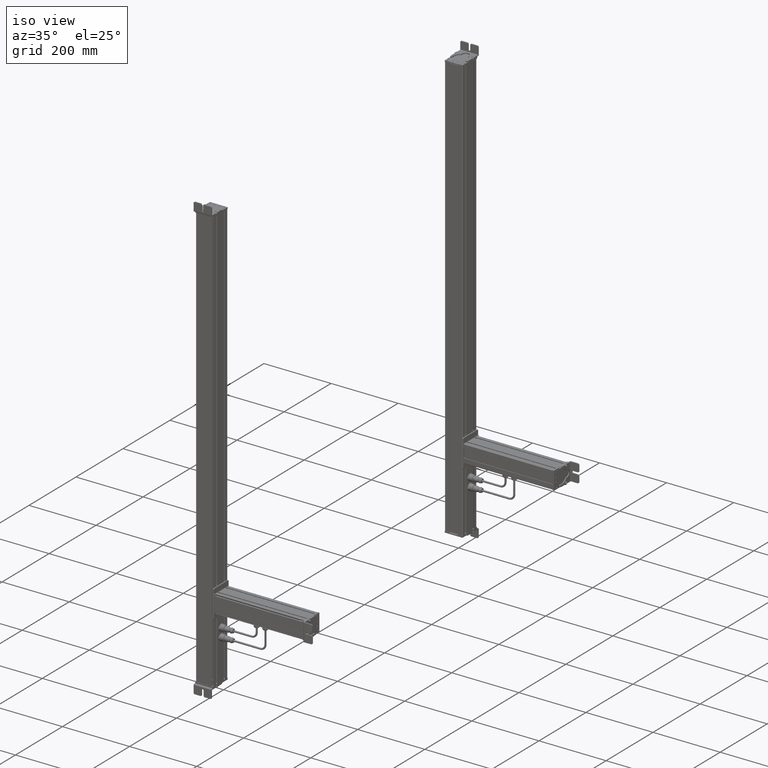
[diagram: clean part render]
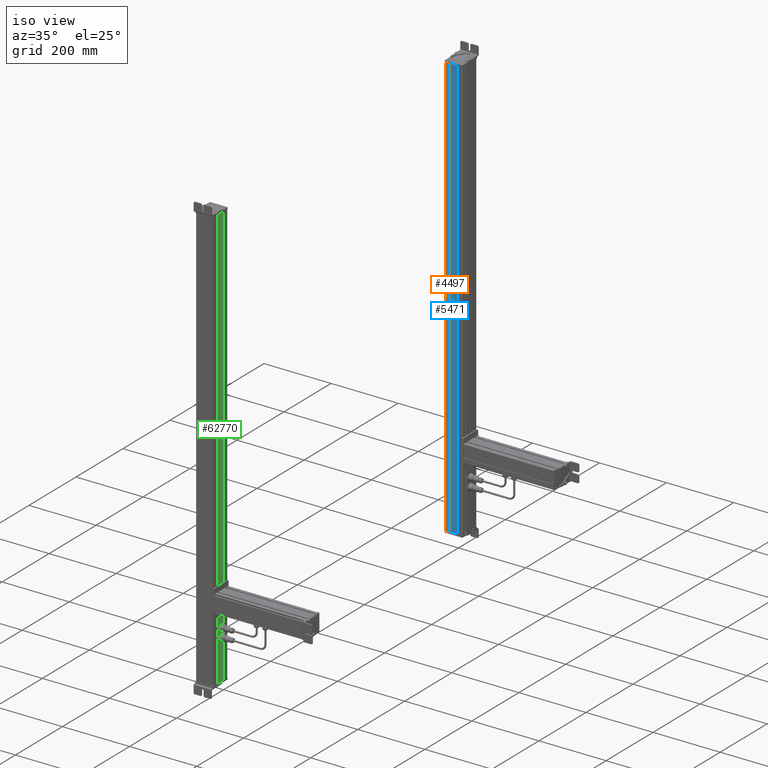
[diagram: same view with three faces highlighted in distinct colors, each labeled with its STEP entity id]
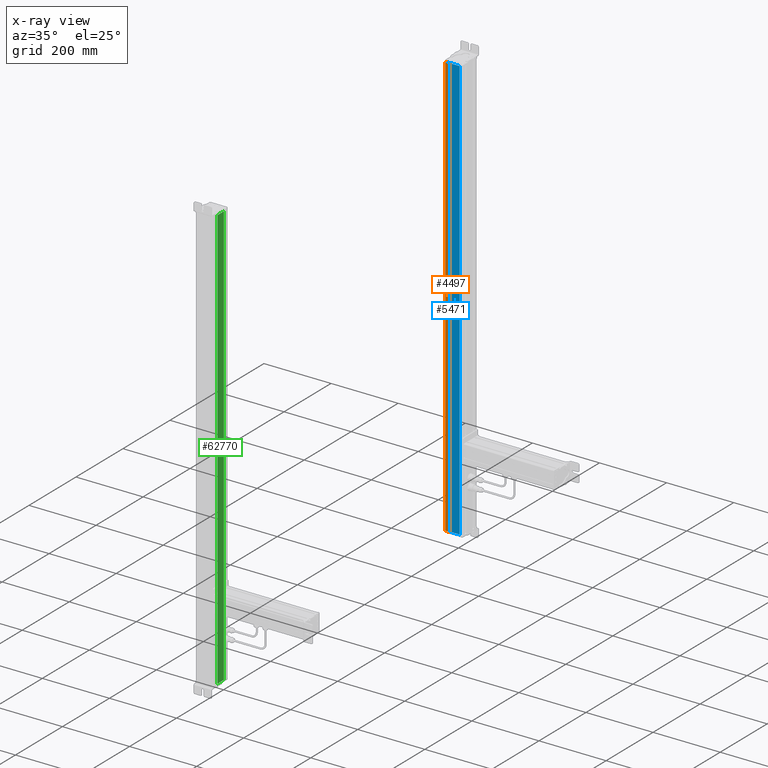
[diagram: x-ray of the same camera — body ghosted, the three highlighted faces saturated]
A machine part, iso view with three faces highlighted in distinct colors.
The next image is the same camera in x-ray (body ghosted, the three faces saturated) — at least one of them is partly hidden behind the body in this view.
Their STEP definitions:

[orange] entity #4497 — the highlighted planar face has unit normal (0, -1, 0).
#598=CARTESIAN_POINT('Axis2P3D Location',(664.195883662,182.060203323,0.)) ;
#4450=CARTESIAN_POINT('Vertex',(664.195883661,182.060203323,0.)) ;
#4453=CARTESIAN_POINT('Line Origine',(664.195883661,182.060203323,631.)) ;
#4457=CARTESIAN_POINT('Vertex',(664.195883661,182.060203323,1262.)) ;
#4472=CARTESIAN_POINT('Line Origine',(657.845883661,182.060203323,0.)) ;
#4476=CARTESIAN_POINT('Vertex',(651.495883661,182.060203323,0.)) ;
#4479=CARTESIAN_POINT('Line Origine',(651.495883661,182.060203323,631.)) ;
#4483=CARTESIAN_POINT('Vertex',(651.495883661,182.060203323,1262.)) ;
#4486=CARTESIAN_POINT('Line Origine',(657.845883661,182.060203323,1262.)) ;
#599=DIRECTION('Axis2P3D Direction',(0.,1.,-0.)) ;
#600=DIRECTION('Axis2P3D XDirection',(-1.,0.,0.)) ;
#4454=DIRECTION('Vector Direction',(0.,0.,1.)) ;
#4473=DIRECTION('Vector Direction',(-1.,0.,0.)) ;
#4480=DIRECTION('Vector Direction',(0.,0.,1.)) ;
#4487=DIRECTION('Vector Direction',(-1.,0.,0.)) ;
#601=AXIS2_PLACEMENT_3D('Plane Axis2P3D',#598,#599,#600) ;
#4492=ORIENTED_EDGE('',*,*,#4459,.F.) ;
#4493=ORIENTED_EDGE('',*,*,#4478,.T.) ;
#4494=ORIENTED_EDGE('',*,*,#4485,.T.) ;
#4495=ORIENTED_EDGE('',*,*,#4490,.F.) ;
#4455=VECTOR('Line Direction',#4454,1.) ;
#4474=VECTOR('Line Direction',#4473,1.) ;
#4481=VECTOR('Line Direction',#4480,1.) ;
#4488=VECTOR('Line Direction',#4487,1.) ;
#4497=ADVANCED_FACE('Body.2',(#4496),#602,.T.) ;
#4459=EDGE_CURVE('',#4451,#4458,#4456,.T.) ;
#4478=EDGE_CURVE('',#4451,#4477,#4475,.T.) ;
#4485=EDGE_CURVE('',#4477,#4484,#4482,.T.) ;
#4490=EDGE_CURVE('',#4458,#4484,#4489,.T.) ;
#4491=EDGE_LOOP('',(#4492,#4493,#4494,#4495)) ;
#4496=FACE_OUTER_BOUND('',#4491,.T.) ;
#4456=LINE('Line',#4453,#4455) ;
#4475=LINE('Line',#4472,#4474) ;
#4482=LINE('Line',#4479,#4481) ;
#4489=LINE('Line',#4486,#4488) ;
#602=PLANE('Plane',#601) ;
#4451=VERTEX_POINT('',#4450) ;
#4458=VERTEX_POINT('',#4457) ;
#4477=VERTEX_POINT('',#4476) ;
#4484=VERTEX_POINT('',#4483) ;

[blue] entity #5471 — the highlighted planar face has unit normal (0, -1, 0).
#5388=CARTESIAN_POINT('Vertex',(622.718933105,180.560203323,0.)) ;
#5391=CARTESIAN_POINT('Line Origine',(639.443450928,180.560203323,0.)) ;
#5395=CARTESIAN_POINT('Vertex',(656.16796875,180.560203323,0.)) ;
#5428=CARTESIAN_POINT('Vertex',(622.718933105,180.560203323,1262.)) ;
#5431=CARTESIAN_POINT('Line Origine',(622.718933105,180.560203323,631.)) ;
#5448=CARTESIAN_POINT('Axis2P3D Location',(656.16796875,180.560203323,0.)) ;
#5453=CARTESIAN_POINT('Line Origine',(656.16796875,180.560203323,631.)) ;
#5457=CARTESIAN_POINT('Vertex',(656.16796875,180.560203323,1262.)) ;
#5460=CARTESIAN_POINT('Line Origine',(639.443450928,180.560203323,1262.)) ;
#5392=DIRECTION('Vector Direction',(-1.,0.,0.)) ;
#5432=DIRECTION('Vector Direction',(0.,0.,1.)) ;
#5449=DIRECTION('Axis2P3D Direction',(-0.,1.,0.)) ;
#5450=DIRECTION('Axis2P3D XDirection',(-1.,-0.,0.)) ;
#5454=DIRECTION('Vector Direction',(0.,0.,1.)) ;
#5461=DIRECTION('Vector Direction',(-1.,0.,0.)) ;
#5451=AXIS2_PLACEMENT_3D('Plane Axis2P3D',#5448,#5449,#5450) ;
#5466=ORIENTED_EDGE('',*,*,#5459,.F.) ;
#5467=ORIENTED_EDGE('',*,*,#5397,.F.) ;
#5468=ORIENTED_EDGE('',*,*,#5435,.T.) ;
#5469=ORIENTED_EDGE('',*,*,#5464,.F.) ;
#5393=VECTOR('Line Direction',#5392,1.) ;
#5433=VECTOR('Line Direction',#5432,1.) ;
#5455=VECTOR('Line Direction',#5454,1.) ;
#5462=VECTOR('Line Direction',#5461,1.) ;
#5471=ADVANCED_FACE('Body.3',(#5470),#5452,.T.) ;
#5397=EDGE_CURVE('',#5389,#5396,#5394,.F.) ;
#5435=EDGE_CURVE('',#5389,#5429,#5434,.T.) ;
#5459=EDGE_CURVE('',#5396,#5458,#5456,.T.) ;
#5464=EDGE_CURVE('',#5458,#5429,#5463,.T.) ;
#5465=EDGE_LOOP('',(#5466,#5467,#5468,#5469)) ;
#5470=FACE_OUTER_BOUND('',#5465,.T.) ;
#5394=LINE('Line',#5391,#5393) ;
#5434=LINE('Line',#5431,#5433) ;
#5456=LINE('Line',#5453,#5455) ;
#5463=LINE('Line',#5460,#5462) ;
#5452=PLANE('Plane',#5451) ;
#5389=VERTEX_POINT('',#5388) ;
#5396=VERTEX_POINT('',#5395) ;
#5429=VERTEX_POINT('',#5428) ;
#5458=VERTEX_POINT('',#5457) ;

[green] entity #62770 — the highlighted planar face has unit normal (1, 0, 0).
#62031=CARTESIAN_POINT('Axis2P3D Location',(666.195883662,171.710394004,0.)) ;
#62723=CARTESIAN_POINT('Vertex',(666.195883661,138.767790275,0.)) ;
#62726=CARTESIAN_POINT('Line Origine',(666.195883661,138.767790275,631.)) ;
#62730=CARTESIAN_POINT('Vertex',(666.195883661,138.767790275,1262.)) ;
#62745=CARTESIAN_POINT('Line Origine',(666.195883662,152.38909214,0.)) ;
#62749=CARTESIAN_POINT('Vertex',(666.195883662,166.010394005,0.)) ;
#62752=CARTESIAN_POINT('Line Origine',(666.195883662,166.010394005,631.)) ;
#62756=CARTESIAN_POINT('Vertex',(666.195883662,166.010394005,1262.)) ;
#62759=CARTESIAN_POINT('Line Origine',(666.195883662,152.38909214,1262.)) ;
#62032=DIRECTION('Axis2P3D Direction',(1.,0.,0.)) ;
#62033=DIRECTION('Axis2P3D XDirection',(0.,1.,0.)) ;
#62727=DIRECTION('Vector Direction',(0.,0.,1.)) ;
#62746=DIRECTION('Vector Direction',(0.,1.,0.)) ;
#62753=DIRECTION('Vector Direction',(0.,0.,1.)) ;
#62760=DIRECTION('Vector Direction',(0.,1.,0.)) ;
#62034=AXIS2_PLACEMENT_3D('Plane Axis2P3D',#62031,#62032,#62033) ;
#62765=ORIENTED_EDGE('',*,*,#62732,.F.) ;
#62766=ORIENTED_EDGE('',*,*,#62751,.T.) ;
#62767=ORIENTED_EDGE('',*,*,#62758,.T.) ;
#62768=ORIENTED_EDGE('',*,*,#62763,.F.) ;
#62728=VECTOR('Line Direction',#62727,1.) ;
#62747=VECTOR('Line Direction',#62746,1.) ;
#62754=VECTOR('Line Direction',#62753,1.) ;
#62761=VECTOR('Line Direction',#62760,1.) ;
#62770=ADVANCED_FACE('Body.2',(#62769),#62035,.T.) ;
#62732=EDGE_CURVE('',#62724,#62731,#62729,.T.) ;
#62751=EDGE_CURVE('',#62724,#62750,#62748,.T.) ;
#62758=EDGE_CURVE('',#62750,#62757,#62755,.T.) ;
#62763=EDGE_CURVE('',#62731,#62757,#62762,.T.) ;
#62764=EDGE_LOOP('',(#62765,#62766,#62767,#62768)) ;
#62769=FACE_OUTER_BOUND('',#62764,.T.) ;
#62729=LINE('Line',#62726,#62728) ;
#62748=LINE('Line',#62745,#62747) ;
#62755=LINE('Line',#62752,#62754) ;
#62762=LINE('Line',#62759,#62761) ;
#62035=PLANE('Plane',#62034) ;
#62724=VERTEX_POINT('',#62723) ;
#62731=VERTEX_POINT('',#62730) ;
#62750=VERTEX_POINT('',#62749) ;
#62757=VERTEX_POINT('',#62756) ;